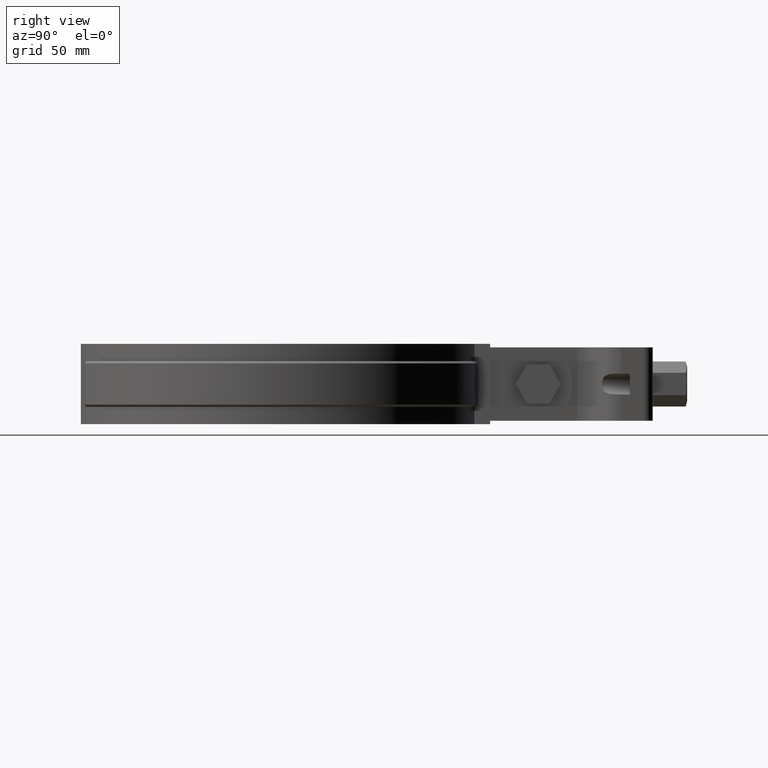
[diagram: clean part render]
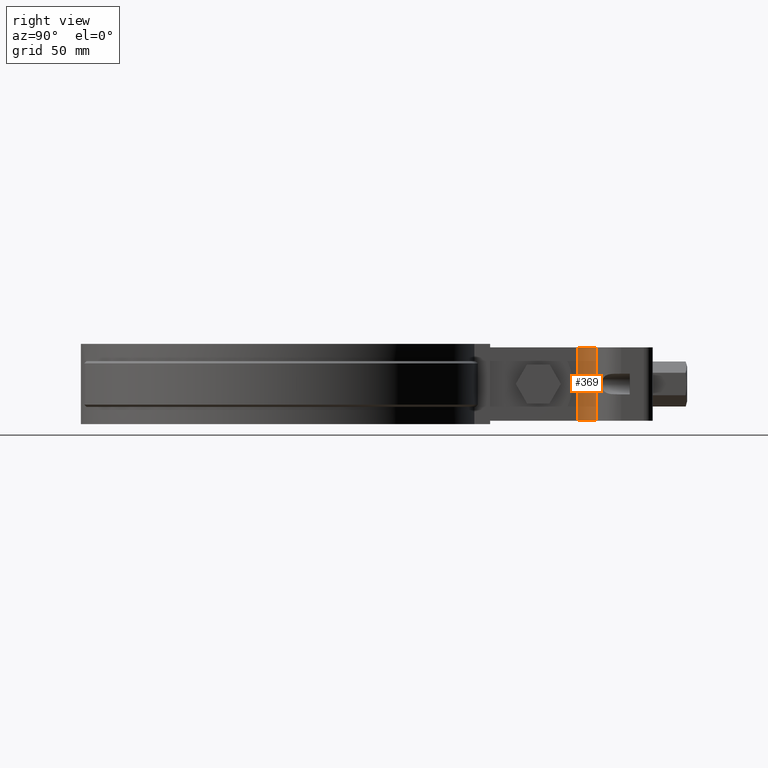
[diagram: same view with one face highlighted and labeled with its STEP entity id]
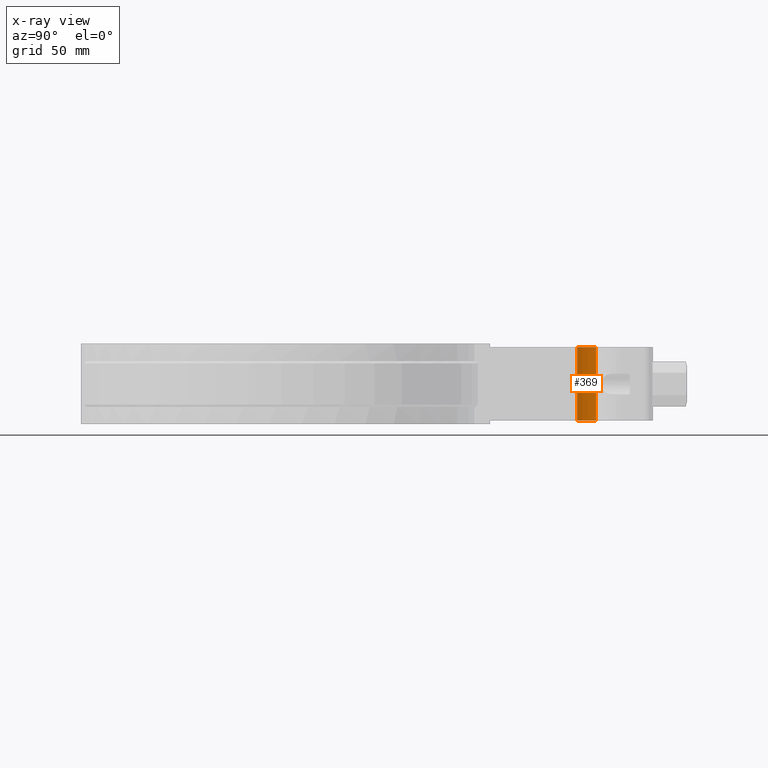
[diagram: x-ray of the same camera — body ghosted, the highlighted face saturated]
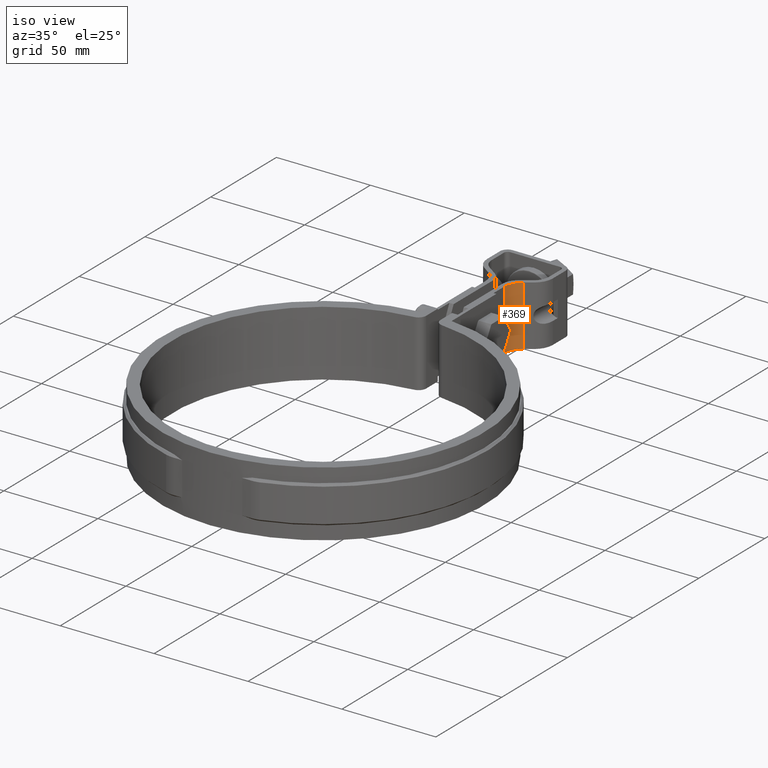
[diagram: same view with one face highlighted and labeled with its STEP entity id]
A machine part, right view. The second image highlights one B-rep face of the part: STEP entity #369.
The next image is the same camera in x-ray: the body ghosted, the highlighted face saturated — about 0% of this face is hidden behind the body in this view.
A second angle (iso view) of the same face is appended — the face is thin or edge-on in the first view.
In plain terms, the highlighted cylindrical surface (edge-blend (fillet) strip) has radius 10 mm, axis along (0, -0, -1).
Its self-contained STEP definition (entity closure, byte-faithful):
#369 = ADVANCED_FACE( '', ( #609 ), #610, .F. );
#609 = FACE_OUTER_BOUND( '', #1371, .T. );
#610 = CYLINDRICAL_SURFACE( '', #1372, 9.99999999999544 );
#1371 = EDGE_LOOP( '', ( #3259, #3260, #3261, #3262 ) );
#1372 = AXIS2_PLACEMENT_3D( '', #3263, #3264, #3265 );
#3259 = ORIENTED_EDGE( '', *, *, #5124, .F. );
#3260 = ORIENTED_EDGE( '', *, *, #5153, .F. );
#3261 = ORIENTED_EDGE( '', *, *, #5140, .T. );
#3262 = ORIENTED_EDGE( '', *, *, #5158, .T. );
#3263 = CARTESIAN_POINT( '', ( 14.9999999999997, 130.440080726866, -31.9999999999823 ) );
#3264 = DIRECTION( '', ( 9.11521279052786E-016, -1.75137682134619E-013, -1.00000000000000 ) );
#3265 = DIRECTION( '', ( -3.03451482752472E-016, 1.00000000000000, -1.75137682134619E-013 ) );
#5124 = EDGE_CURVE( '', #5706, #5708, #5709, .T. );
#5140 = EDGE_CURVE( '', #5737, #5735, #5738, .T. );
#5153 = EDGE_CURVE( '', #5737, #5706, #5757, .T. );
#5158 = EDGE_CURVE( '', #5735, #5708, #5763, .T. );
#5706 = VERTEX_POINT( '', #7698 );
#5708 = VERTEX_POINT( '', #7701 );
#5709 = CIRCLE( '', #7702, 9.99999999999981 );
#5735 = VERTEX_POINT( '', #7737 );
#5737 = VERTEX_POINT( '', #7740 );
#5738 = CIRCLE( '', #7741, 9.99999999999981 );
#5757 = LINE( '', #7768, #7769 );
#5763 = LINE( '', #7775, #7776 );
#7698 = CARTESIAN_POINT( '', ( 4.99999999999989, 130.440080726872, 3.76781938982048E-012 ) );
#7701 = CARTESIAN_POINT( '', ( 9.26423563648934, 138.631601169758, 2.33493779866407E-012 ) );
#7702 = AXIS2_PLACEMENT_3D( '', #9692, #9693, #9694 );
#7737 = CARTESIAN_POINT( '', ( 9.26423563648937, 138.631601169752, -31.9999999999837 ) );
#7740 = CARTESIAN_POINT( '', ( 4.99999999999991, 130.440080726866, -31.9999999999823 ) );
#7741 = AXIS2_PLACEMENT_3D( '', #9720, #9721, #9722 );
#7768 = CARTESIAN_POINT( '', ( 4.99999999999991, 130.440080726866, -31.9999999999823 ) );
#7769 = VECTOR( '', #9743, 999.999999999867 );
#7775 = CARTESIAN_POINT( '', ( 9.26423563648937, 138.631601169752, -31.9999999999837 ) );
#7776 = VECTOR( '', #9756, 999.999999999867 );
#9692 = CARTESIAN_POINT( '', ( 14.9999999999997, 130.440080726872, 3.77822773067634E-012 ) );
#9693 = DIRECTION( '', ( 9.11521279052786E-016, -1.75137682134619E-013, -1.00000000000000 ) );
#9694 = DIRECTION( '', ( -1.00000000000000, -3.03451482752632E-016, -9.11521279052733E-016 ) );
#9720 = CARTESIAN_POINT( '', ( 14.9999999999997, 130.440080726866, -31.9999999999823 ) );
#9721 = DIRECTION( '', ( 9.11521279052786E-016, -1.75137682134619E-013, -1.00000000000000 ) );
#9722 = DIRECTION( '', ( -1.00000000000000, -3.03451482752632E-016, -9.11521279052733E-016 ) );
#9743 = DIRECTION( '', ( -9.11521279052786E-016, 1.75137682134619E-013, 1.00000000000000 ) );
#9756 = DIRECTION( '', ( -9.11521279052786E-016, 1.75137682134619E-013, 1.00000000000000 ) );